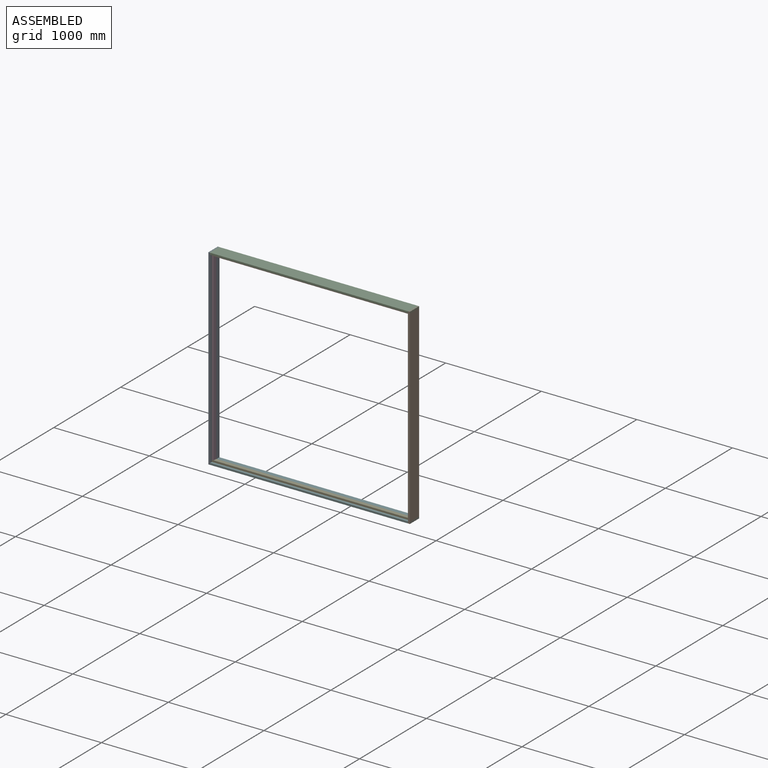
[diagram: assembled view]
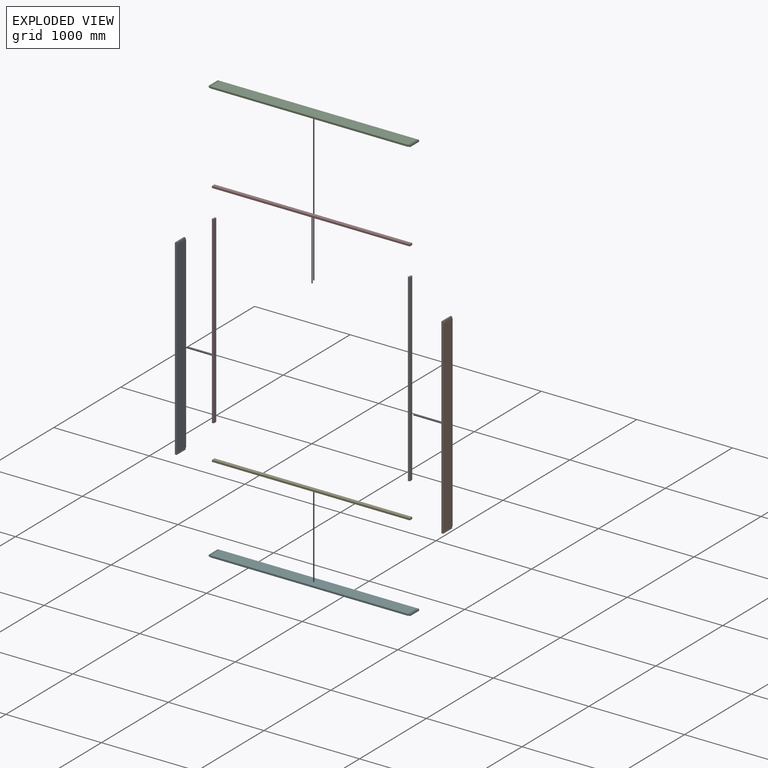
[diagram: exploded view]
GUIDED TOUR — MATED ASSEMBLY (Onshape document 37dc3142e768c124ee8894ab, AutoMate assembly 37dc3142e768c124ee8894ab_7675b949278638d42082e3d6_f96c5b0db1acd5f47ab8d275_default)

This assembly has 8 components, labeled P0..P7 below (a component is one placed occurrence of a part; the same part can appear more than once), held together by 21 mates. A mate is a constraint between two components; its type names the relative motion it leaves free:
  PLANAR — leaves sliding in the plane through the listed point (normal = the listed direction) and rotation about that normal free.
Axis/direction vectors are unit vectors and 'through' points are millimeter coordinates, both in the assembly's world frame.

MATES
  1. PLANAR "Planar 11": P7 <-> P2, direction (0.000, -1.000, 0.000) through (-302.90, -1438.75, -539.74) mm
  2. PLANAR "Planar 3": P2 <-> P1, direction (0.000, 0.000, 1.000) through (-302.90, -1394.27, -511.16) mm
  3. PLANAR "Planar 13": P3 <-> P0, direction (-1.000, 0.000, 0.000) through (-1337.95, -1419.70, -1514.46) mm
  4. PLANAR "Planar 16": P0 <-> P4, direction (1.000, 0.000, 0.000) through (-1337.95, -1394.33, -1514.46) mm
  5. PLANAR "Planar 17": P3 <-> P7, direction (0.000, 0.000, 1.000) through (-1328.42, -1419.70, -549.26) mm
  6. PLANAR "Planar 21": P6 <-> P7, direction (0.000, -1.000, 0.000) through (722.63, -1438.75, -1514.46) mm
  7. PLANAR "Planar 18": P7 <-> P3, direction (0.000, -1.000, 0.000) through (-302.90, -1438.75, -539.74) mm
  8. PLANAR "Planar 4": P5 <-> P1, direction (0.000, -1.000, 0.000) through (-302.90, -1464.15, -2508.24) mm
  9. PLANAR "Planar 10": P4 <-> P5, direction (0.000, 0.000, -1.000) through (-302.90, -1419.70, -2498.71) mm
  10. PLANAR "Planar 2": P1 <-> P2, direction (1.000, 0.000, 0.000) through (751.20, -1394.33, -1514.46) mm
  11. PLANAR "Planar 12": P7 <-> P2, direction (0.000, 0.000, 1.000) through (-302.90, -1419.70, -530.21) mm
  12. PLANAR "Planar 7": P0 <-> P2, direction (0.000, -1.000, 0.000) through (-1347.47, -1464.15, -1514.46) mm
  13. PLANAR "Planar 20": P6 <-> P7, direction (0.000, 0.000, 1.000) through (722.63, -1419.70, -549.26) mm
  14. PLANAR "Planar 14": P0 <-> P7, direction (1.000, 0.000, 0.000) through (-1337.95, -1394.33, -1514.46) mm
  15. PLANAR "Planar 1": P1 <-> P2, direction (0.000, -1.000, 0.000) through (741.68, -1464.15, -1514.46) mm
  16. PLANAR "Planar 15": P4 <-> P5, direction (0.000, -1.000, 0.000) through (-302.90, -1438.75, -2489.19) mm
  17. PLANAR "Planar 9": P0 <-> P2, direction (-1.000, 0.000, 0.000) through (-1357.00, -1394.33, -1514.46) mm
  18. PLANAR "Planar 5": P1 <-> P5, direction (0.000, 0.000, -1.000) through (751.20, -1460.97, -2517.76) mm
  19. PLANAR "Planar 6": P5 <-> P1, direction (1.000, 0.000, 0.000) through (751.20, -1454.62, -2498.71) mm
  20. PLANAR "Planar 19": P6 <-> P1, direction (1.000, 0.000, 0.000) through (732.15, -1419.70, -1514.46) mm
  21. PLANAR "Planar 8": P0 <-> P2, direction (0.000, 0.000, 1.000) through (-1347.47, -1460.97, -511.16) mm

ASSEMBLY ORDER
  1. P4 — the base component [order verified]
  2. P3 [order verified]
  3. P0 [order verified]
  4. P5 [order verified]
  5. P6 [order verified]
  6. P1 [order verified]
  7. P7 [order verified]
  8. P2 [order verified]
(P1, P2, P5 verified with a relaxed clearance tolerance: the source model stores slight part interference there.)
Order-tag legend:
  [order verified] — this step's position reverses a verified removal order: the component was checked to insert without passing through the ones already placed.

Of the 8 components, 4 carry the full construction recipe — the FeatureScript program that regenerates the part's solid from scratch; the rest are supplied as boundary geometry only.
Each toured component is shown spotlighted twice — in the assembled view, then in the exploded view, where a leader line traces a displaced component back to its assembled socket (saturated green if recipe-attached, orange if geometry-only; every other component desaturated gray) — followed by its recipe or geometry summary and the mates that hold it.
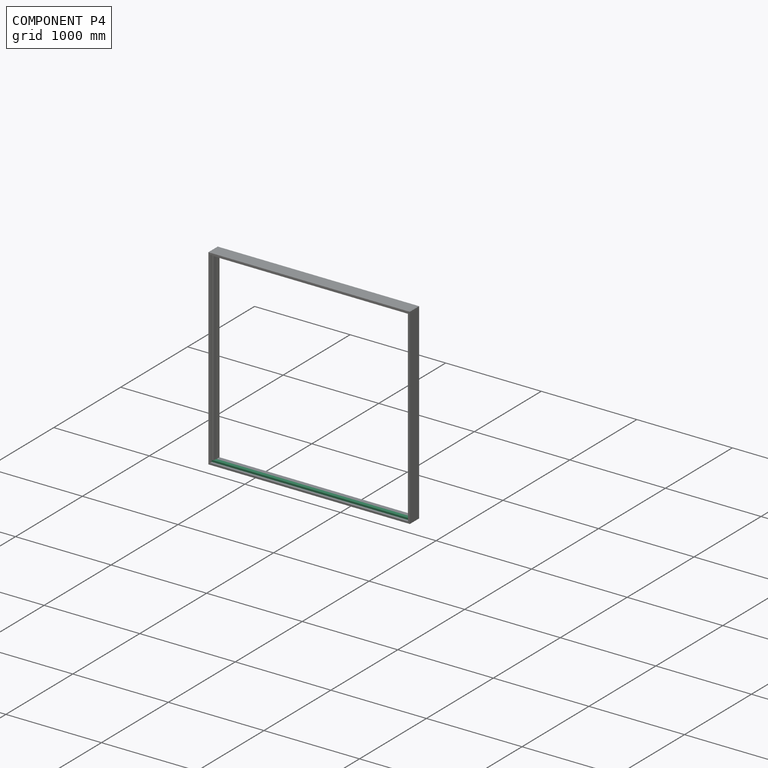
[diagram: component P4 — assembled]
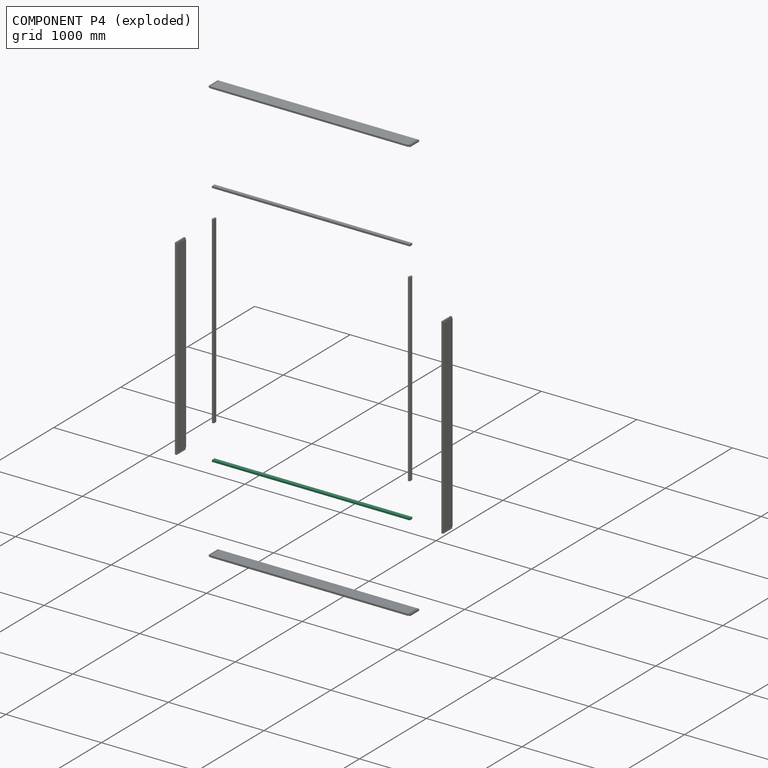
[diagram: component P4 — exploded]
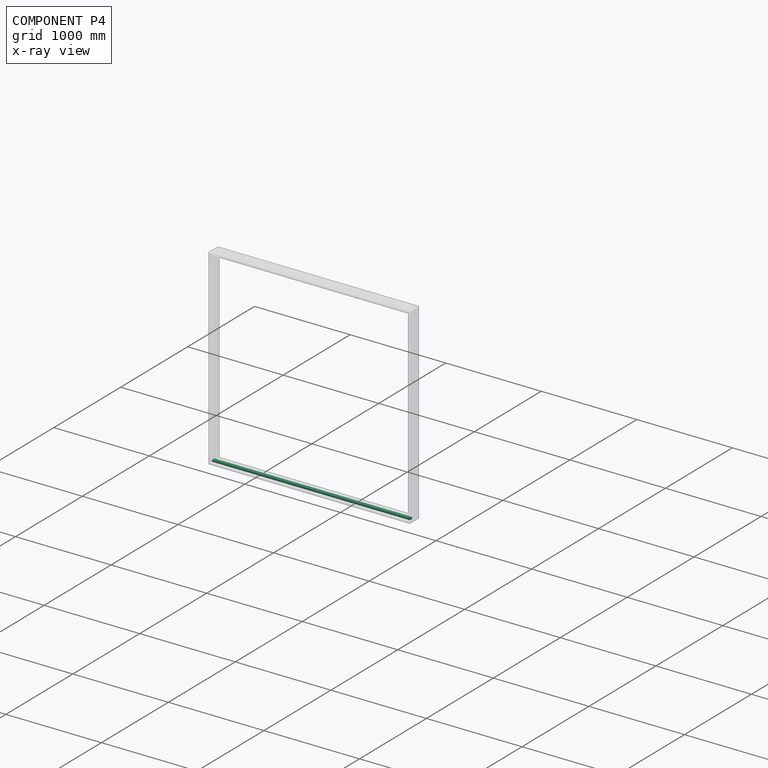
[diagram: component P4 — x-ray view]
COMPONENT P4 — recipe-attached (CADFS 00887722, mesh-verified: the recipe's output STEP matches this component's geometry to below the mesh-comparison resolution (tessellation chordal tolerance ~3.11 mm)).
Held by: PLANAR mate "Planar 16" to P0; PLANAR mate "Planar 10" to P5; PLANAR mate "Planar 15" to P5.
Construction recipe (FeatureScript — the CAD program that rebuilds this solid; sketch coordinates are in the units given by the * unit suffixes, e.g. mm):

FeatureScript 1511;
import(path : "onshape/std/geometry.fs", version : "1511.0");
import(path : "onshape/std/common.fs", version : "1511.0");
const mm = millimeter;
const VERTEX = EntityType.VERTEX;
const EDGE = EntityType.EDGE;
const FACE = EntityType.FACE;
const BODY = EntityType.BODY;
function v(x, y){return vector(x, y);}
function OD(order){return orderDisambiguation(order);}
function OSD(set){return originalSetDisambiguation(set);}
function TD(topology){return topologyDisambiguation(topology);}
function TDD(query){return trueDependencyDisambiguation(query);}
function sQuery(a, b, c) {return sketchEntityQuery(a, b, c);}

annotation { "Feature Type Name" : "Feature", "Feature Type Description" : "" }
export const myFeature = defineFeature(function(context is Context, id is Id, definition is map)
    precondition{}
    {
        {
            var Q0;
            Q0=qCreatedBy(makeId("Front.planeOp"),FACE);
            var sketch = newSketch(context, id + "F0", { "sketchPlane" : qUnion([Q0])});
            skLineSegment(sketch, "E0.bottom", {"start": v(-9.52, 19.05) * mm, "end": v(9.53, 19.05) * mm});
            skLineSegment(sketch, "E0.top", {"start": v(-9.53, -19.05) * mm, "end": v(9.52, -19.05) * mm});
            skLineSegment(sketch, "E0.left", {"start": v(-9.52, 19.05) * mm, "end": v(-9.53, -19.05) * mm});
            skLineSegment(sketch, "E0.right", {"start": v(9.53, 19.05) * mm, "end": v(9.52, -19.05) * mm});
            skPoint(sketch, "E0.middle", {"position": v(0, 0) * mm});
            skSolve(sketch);
        }
        {
            var Q0;
            Q0 = qSketchRegion(id + "F0", true);
            extrude(context, id + "F1", {"entities" : qUnion([Q0]), "endBound" : BoundingType.SYMMETRIC, "depth" : 2070.1 * mm, "offsetDistance" : 25.4 * mm});
        }
    });
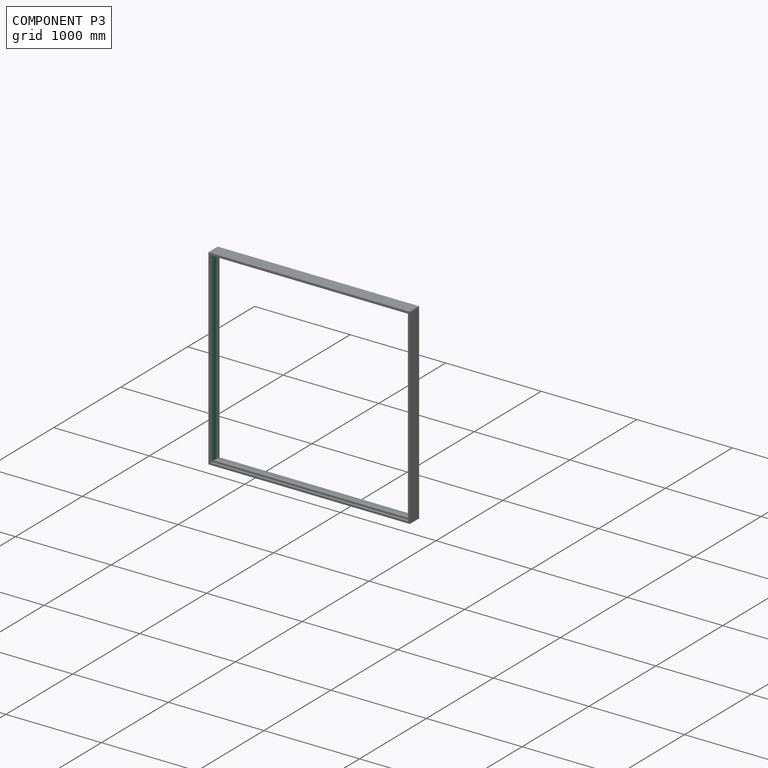
[diagram: component P3 — assembled]
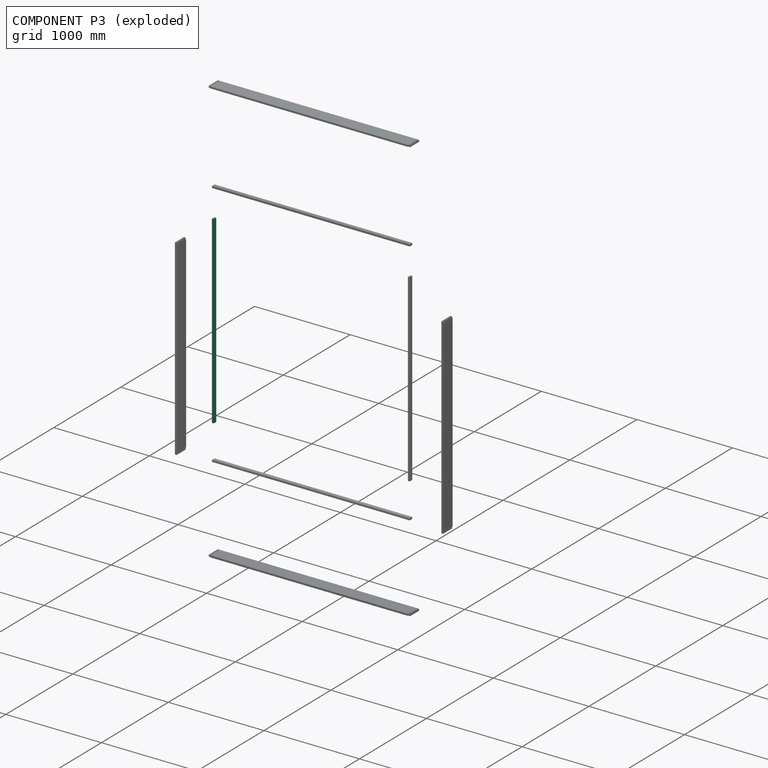
[diagram: component P3 — exploded]
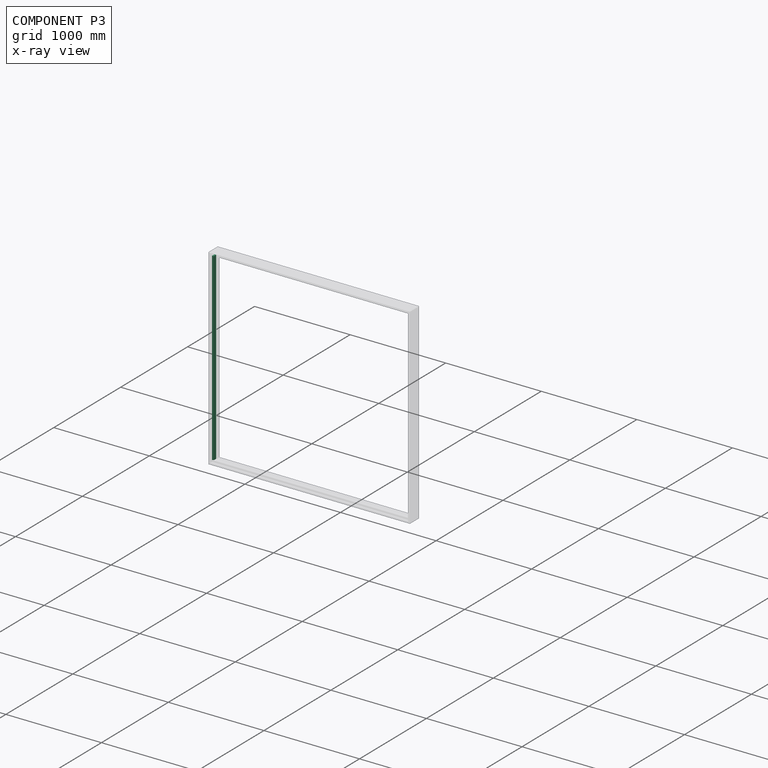
[diagram: component P3 — x-ray view]
COMPONENT P3 — recipe-attached (CADFS 00887723, mesh-verified: the recipe's output STEP matches this component's geometry to below the mesh-comparison resolution (tessellation chordal tolerance ~2.9 mm)).
Held by: PLANAR mate "Planar 13" to P0; PLANAR mate "Planar 17" to P7; PLANAR mate "Planar 18" to P7.
Construction recipe (FeatureScript — the CAD program that rebuilds this solid; sketch coordinates are in the units given by the * unit suffixes, e.g. mm):

FeatureScript 1511;
import(path : "onshape/std/geometry.fs", version : "1511.0");
import(path : "onshape/std/common.fs", version : "1511.0");
const mm = millimeter;
const VERTEX = EntityType.VERTEX;
const EDGE = EntityType.EDGE;
const FACE = EntityType.FACE;
const BODY = EntityType.BODY;
function v(x, y){return vector(x, y);}
function OD(order){return orderDisambiguation(order);}
function OSD(set){return originalSetDisambiguation(set);}
function TD(topology){return topologyDisambiguation(topology);}
function TDD(query){return trueDependencyDisambiguation(query);}
function sQuery(a, b, c) {return sketchEntityQuery(a, b, c);}

annotation { "Feature Type Name" : "Feature", "Feature Type Description" : "" }
export const myFeature = defineFeature(function(context is Context, id is Id, definition is map)
    precondition{}
    {
        {
            var Q0;
            Q0=qCreatedBy(makeId("Front.planeOp"),FACE);
            var sketch = newSketch(context, id + "F0", { "sketchPlane" : qUnion([Q0])});
            skLineSegment(sketch, "E0.bottom", {"start": v(-9.52, 19.05) * mm, "end": v(9.53, 19.05) * mm});
            skLineSegment(sketch, "E0.top", {"start": v(-9.53, -19.05) * mm, "end": v(9.52, -19.05) * mm});
            skLineSegment(sketch, "E0.left", {"start": v(-9.52, 19.05) * mm, "end": v(-9.53, -19.05) * mm});
            skLineSegment(sketch, "E0.right", {"start": v(9.53, 19.05) * mm, "end": v(9.52, -19.05) * mm});
            skPoint(sketch, "E0.middle", {"position": v(0, 0) * mm});
            skSolve(sketch);
        }
        {
            var Q0;
            Q0=qSketchRegion(id+"F0",true);
            extrude(context, id + "F1", {"entities" : qUnion([Q0]), "endBound" : BoundingType.SYMMETRIC, "depth" : 1930.4 * mm, "offsetDistance" : 25.4 * mm});
        }
    });
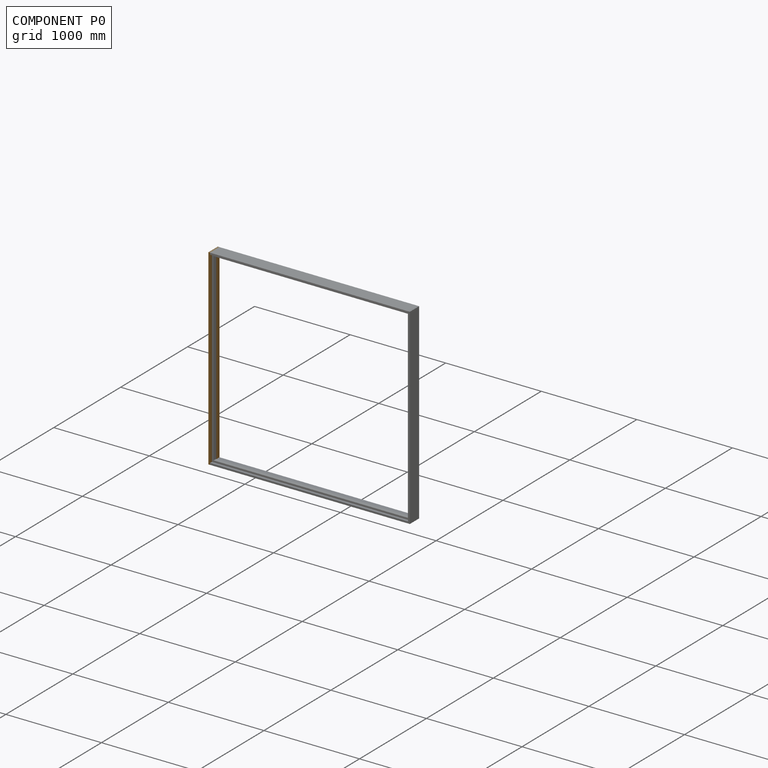
[diagram: component P0 — assembled]
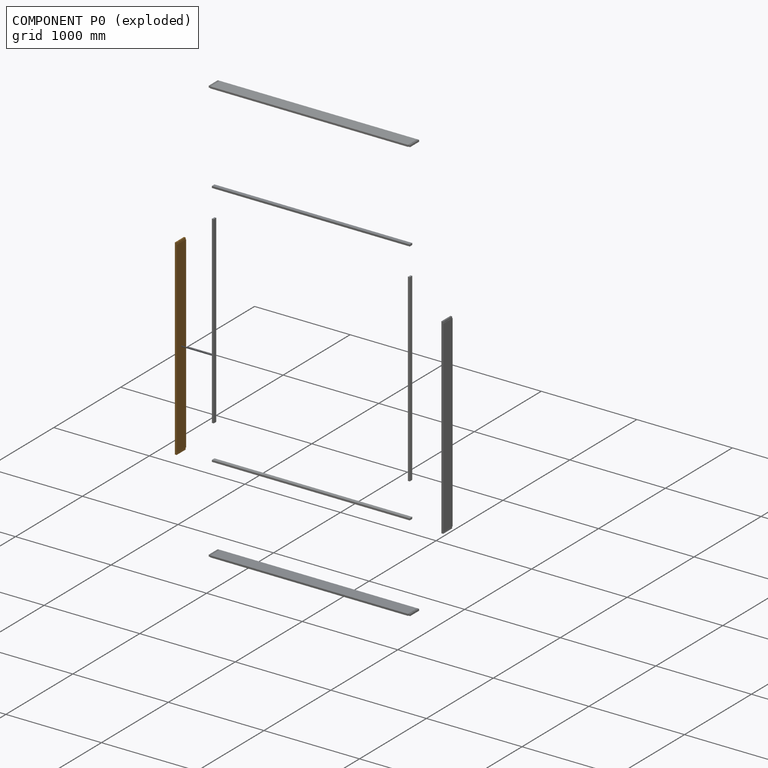
[diagram: component P0 — exploded]
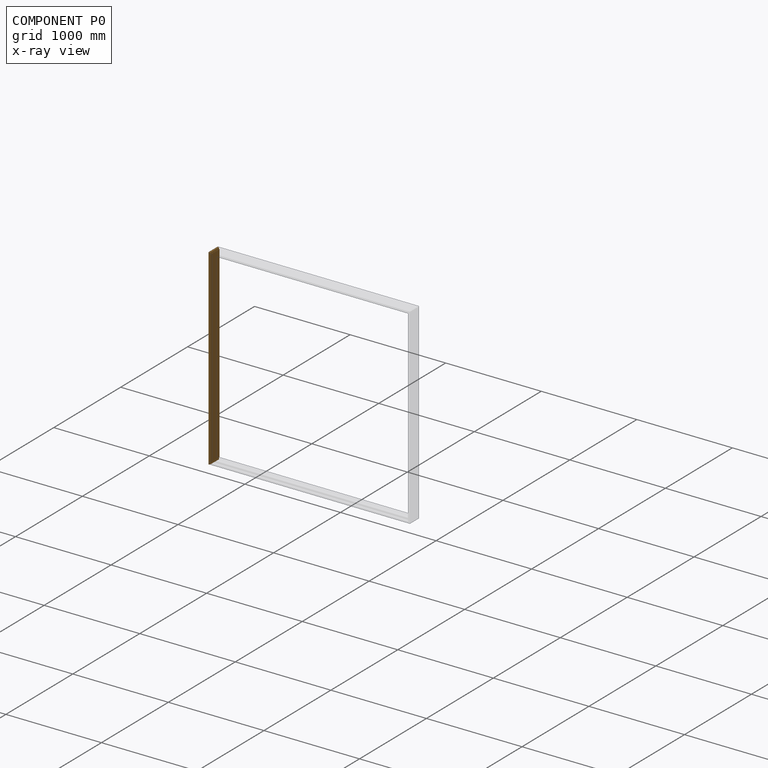
[diagram: component P0 — x-ray view]
COMPONENT P0 — geometry summary (no construction recipe available for this part):
  bounding box: 2006.6 x 139.7 x 19.1 mm
  B-rep topology: 1 solid, 90 faces, 528 edges
  volume: 5289437 mm^3 (99% of its bounding box)
  symmetry: 2-fold rotationally symmetric about the x axis; 2-fold rotationally symmetric about the y axis; 2-fold rotationally symmetric about the z axis; mirror-symmetric across its x mid-plane, y mid-plane, z mid-plane
Held by: PLANAR mate "Planar 13" to P3; PLANAR mate "Planar 16" to P4; PLANAR mate "Planar 7" to P2; PLANAR mate "Planar 14" to P7; PLANAR mate "Planar 9" to P2; PLANAR mate "Planar 8" to P2.
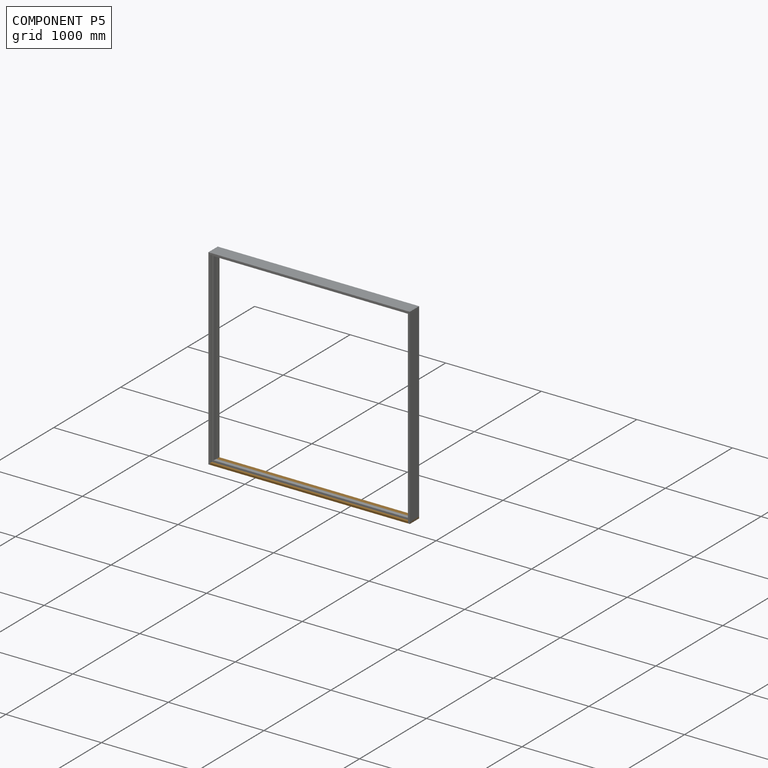
[diagram: component P5 — assembled]
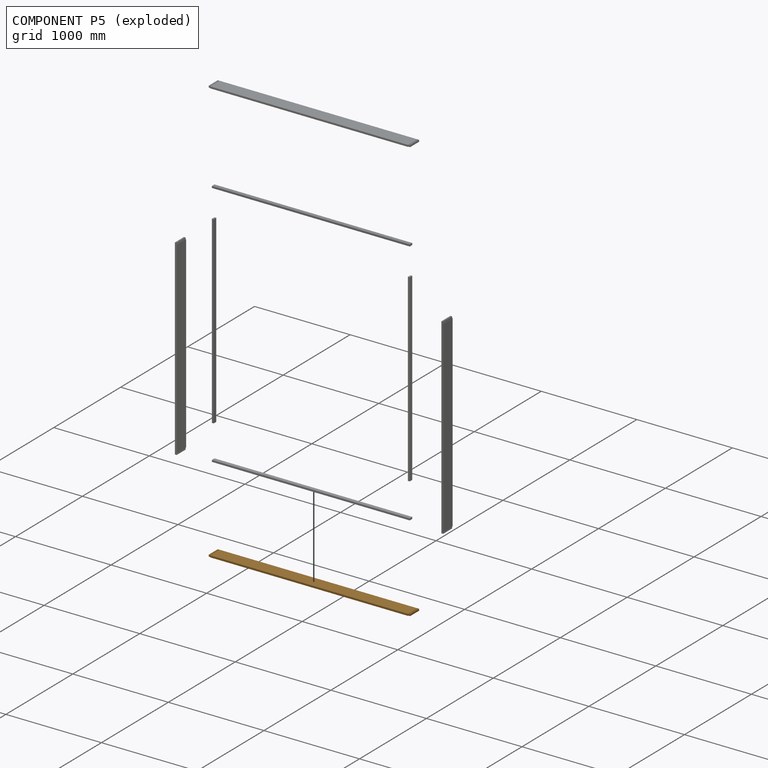
[diagram: component P5 — exploded]
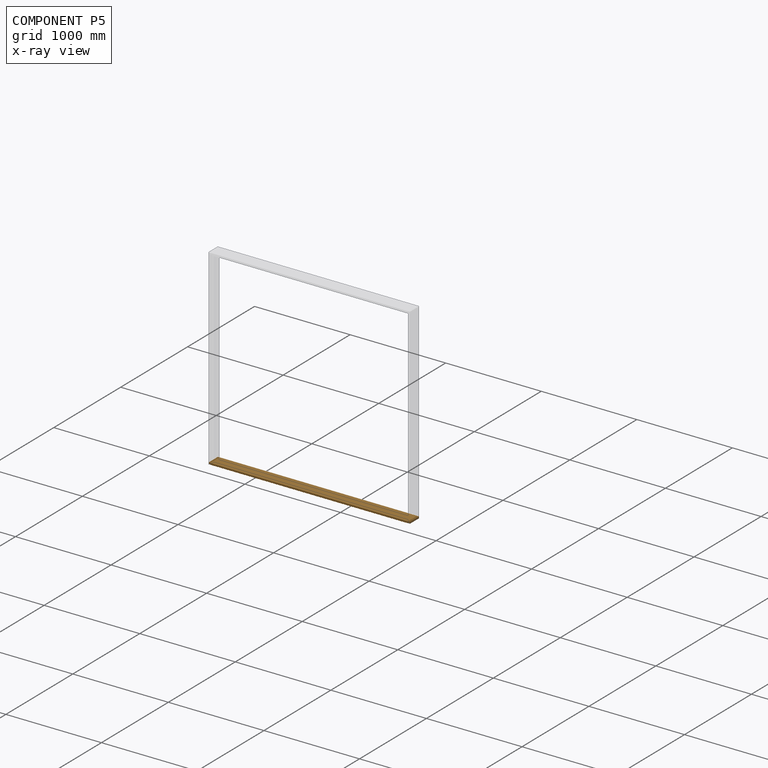
[diagram: component P5 — x-ray view]
COMPONENT P5 — geometry summary (no construction recipe available for this part):
  bounding box: 2108.2 x 139.7 x 19.1 mm
  B-rep topology: 1 solid, 90 faces, 528 edges
  volume: 5559824 mm^3 (99% of its bounding box)
  symmetry: 2-fold rotationally symmetric about the x axis; 2-fold rotationally symmetric about the y axis; 2-fold rotationally symmetric about the z axis; mirror-symmetric across its x mid-plane, y mid-plane, z mid-plane
Held by: PLANAR mate "Planar 4" to P1; PLANAR mate "Planar 10" to P4; PLANAR mate "Planar 15" to P4; PLANAR mate "Planar 5" to P1; PLANAR mate "Planar 6" to P1.
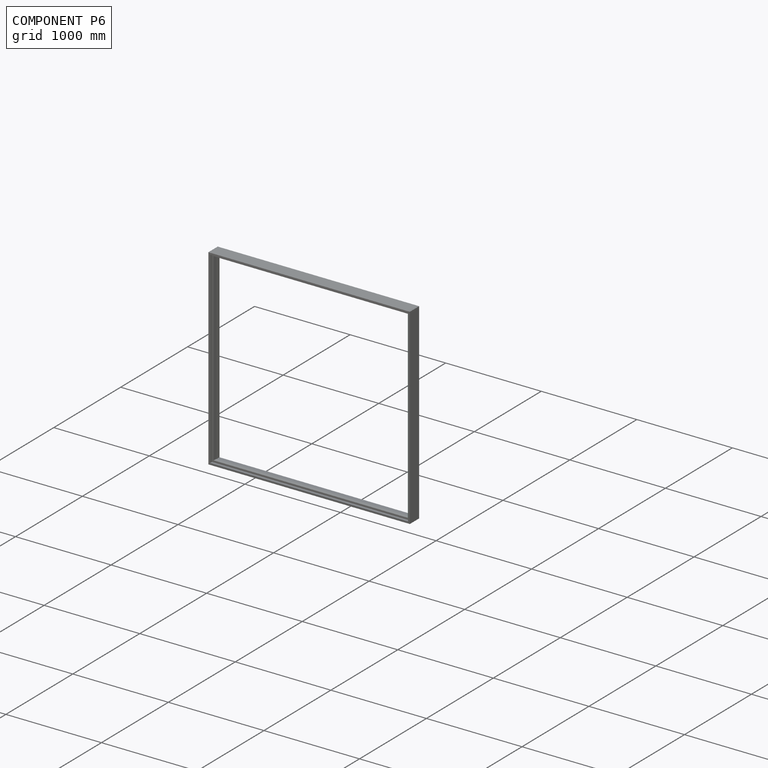
[diagram: component P6 — assembled]
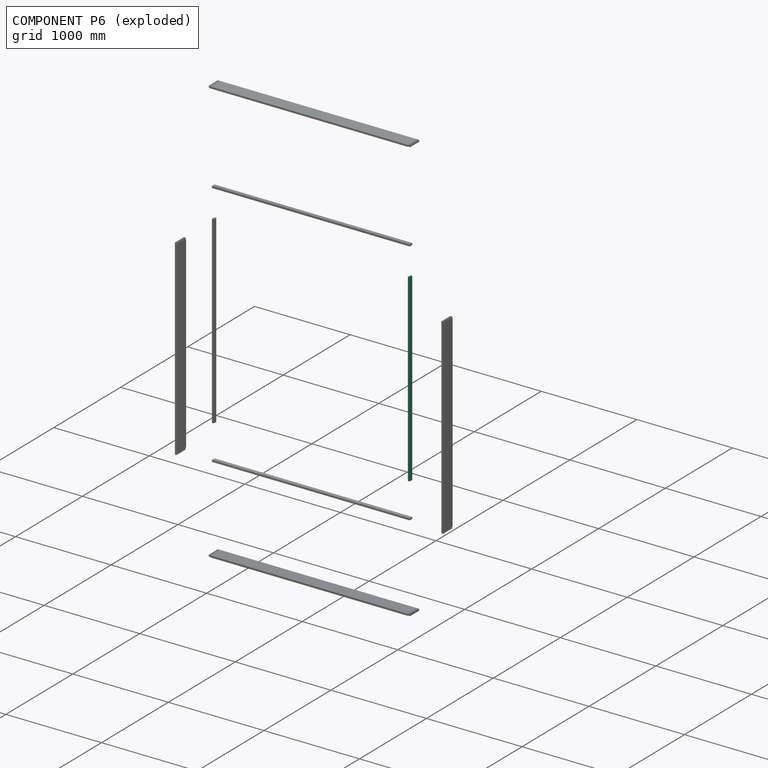
[diagram: component P6 — exploded]
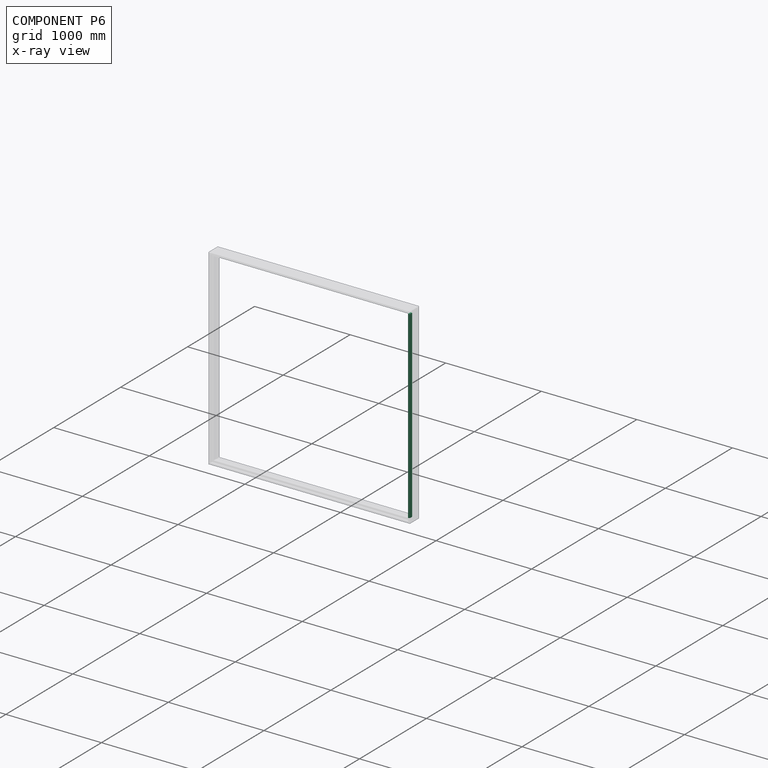
[diagram: component P6 — x-ray view]
COMPONENT P6 — same part as P3 (CADFS 00887723); its construction recipe is shown at P3.
Held by: PLANAR mate "Planar 21" to P7; PLANAR mate "Planar 20" to P7; PLANAR mate "Planar 19" to P1.
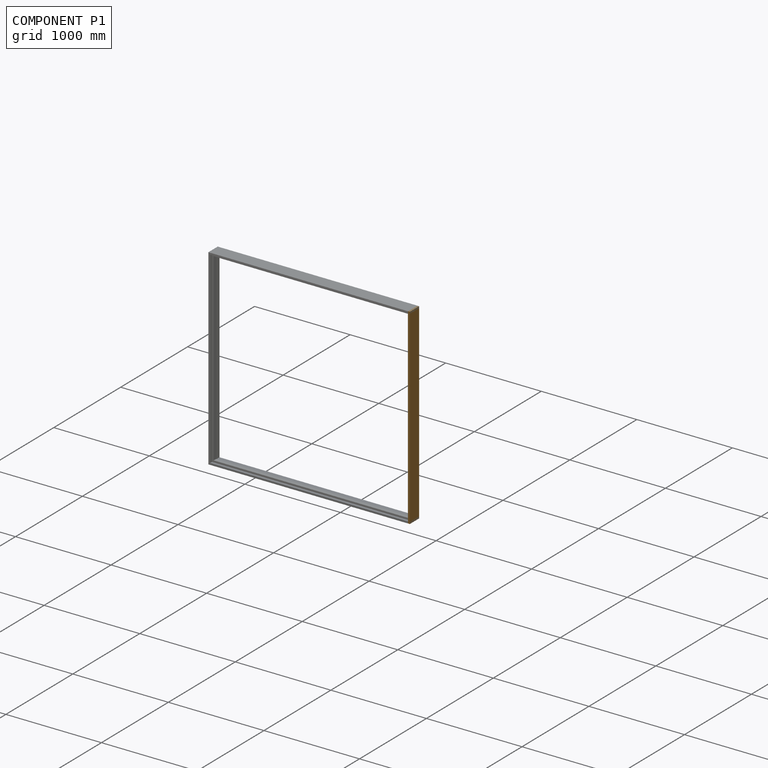
[diagram: component P1 — assembled]
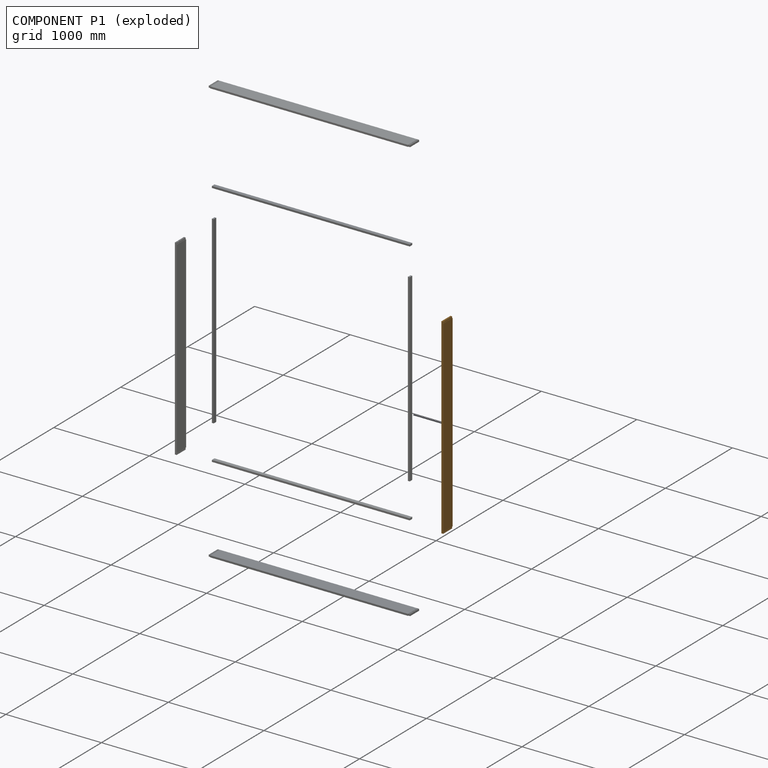
[diagram: component P1 — exploded]
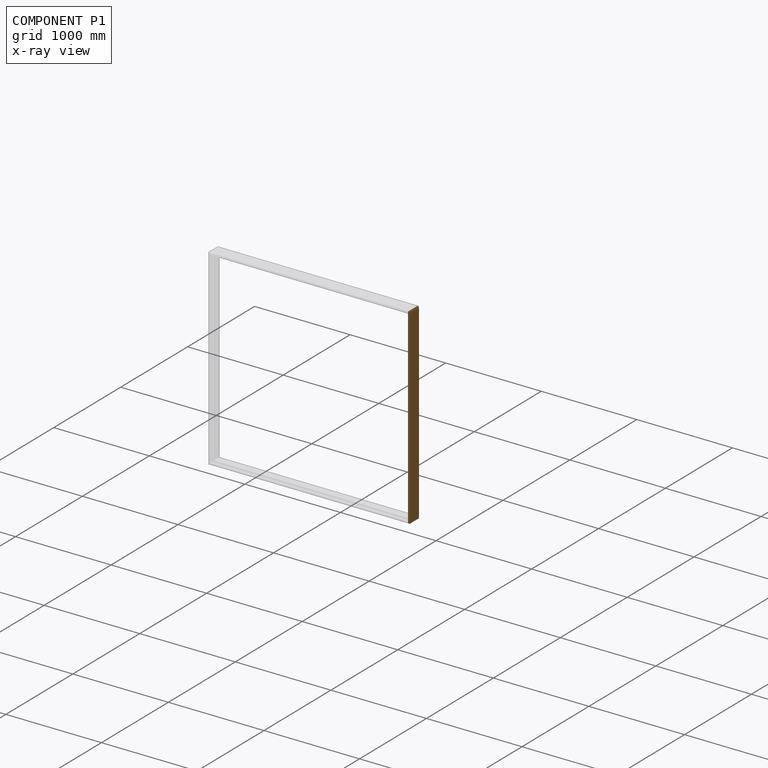
[diagram: component P1 — x-ray view]
COMPONENT P1 — geometry summary (no construction recipe available for this part):
  bounding box: 2006.6 x 139.7 x 19.1 mm
  B-rep topology: 1 solid, 90 faces, 528 edges
  volume: 5289437 mm^3 (99% of its bounding box)
  symmetry: 2-fold rotationally symmetric about the x axis; 2-fold rotationally symmetric about the y axis; 2-fold rotationally symmetric about the z axis; mirror-symmetric across its x mid-plane, y mid-plane, z mid-plane
Held by: PLANAR mate "Planar 3" to P2; PLANAR mate "Planar 4" to P5; PLANAR mate "Planar 2" to P2; PLANAR mate "Planar 1" to P2; PLANAR mate "Planar 5" to P5; PLANAR mate "Planar 6" to P5; PLANAR mate "Planar 19" to P6.
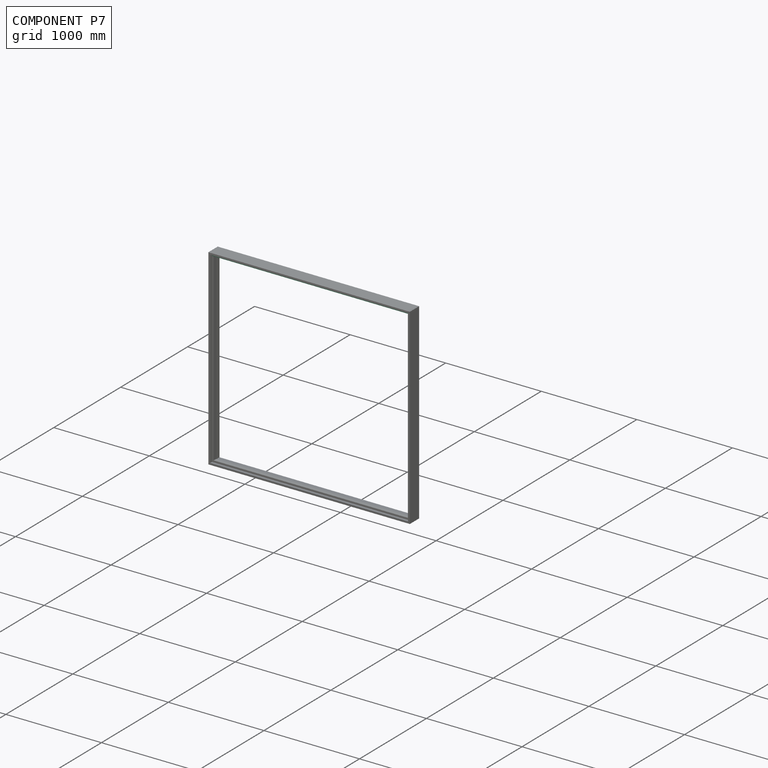
[diagram: component P7 — assembled]
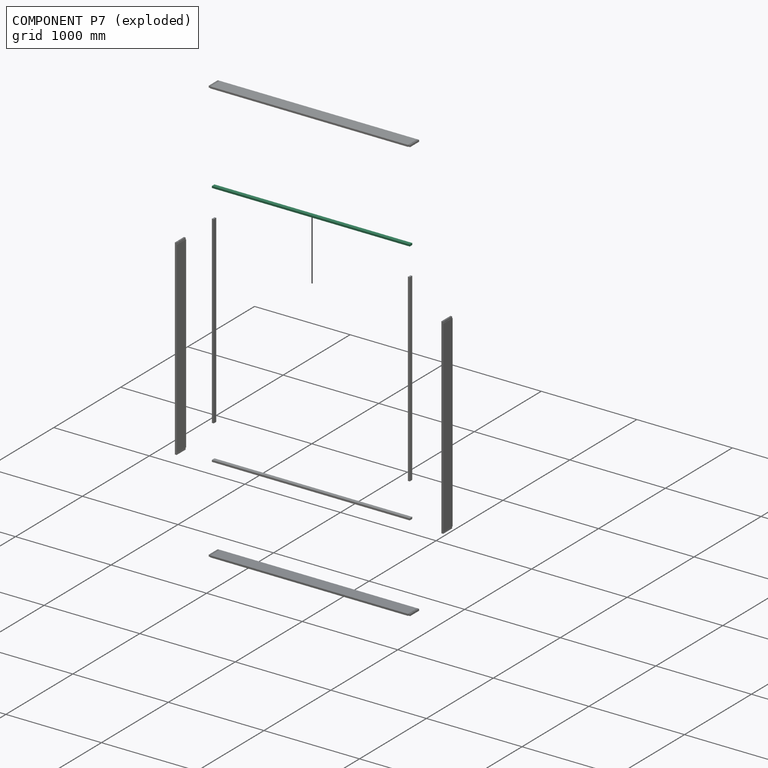
[diagram: component P7 — exploded]
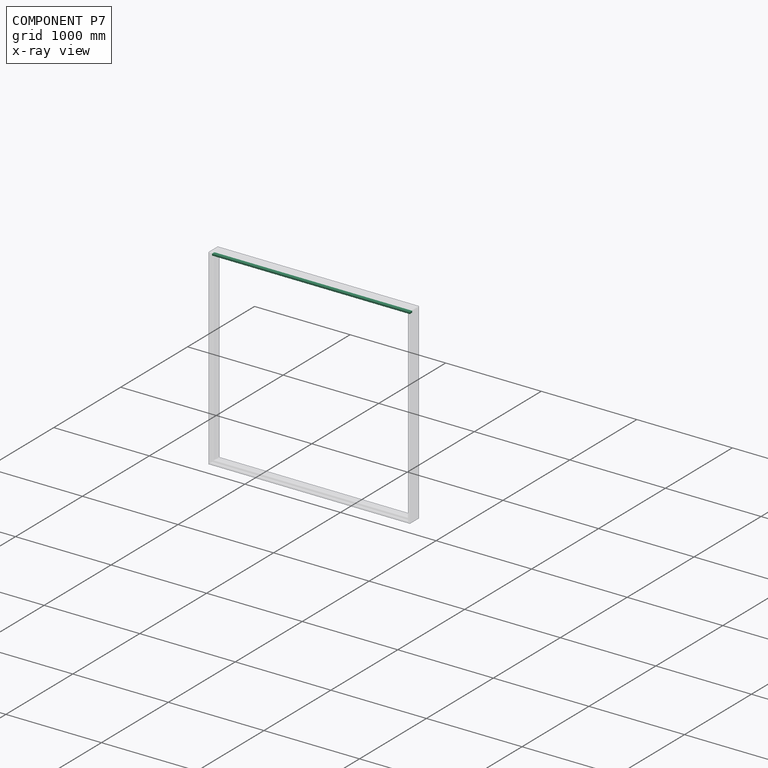
[diagram: component P7 — x-ray view]
COMPONENT P7 — same part as P4 (CADFS 00887722); its construction recipe is shown at P4.
Held by: PLANAR mate "Planar 11" to P2; PLANAR mate "Planar 17" to P3; PLANAR mate "Planar 21" to P6; PLANAR mate "Planar 18" to P3; PLANAR mate "Planar 12" to P2; PLANAR mate "Planar 20" to P6; PLANAR mate "Planar 14" to P0.
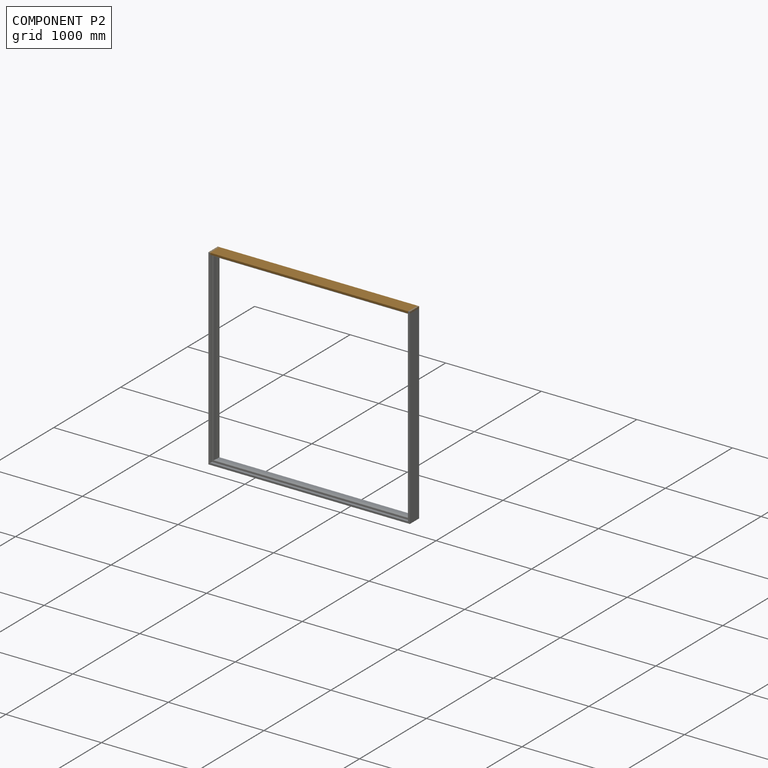
[diagram: component P2 — assembled]
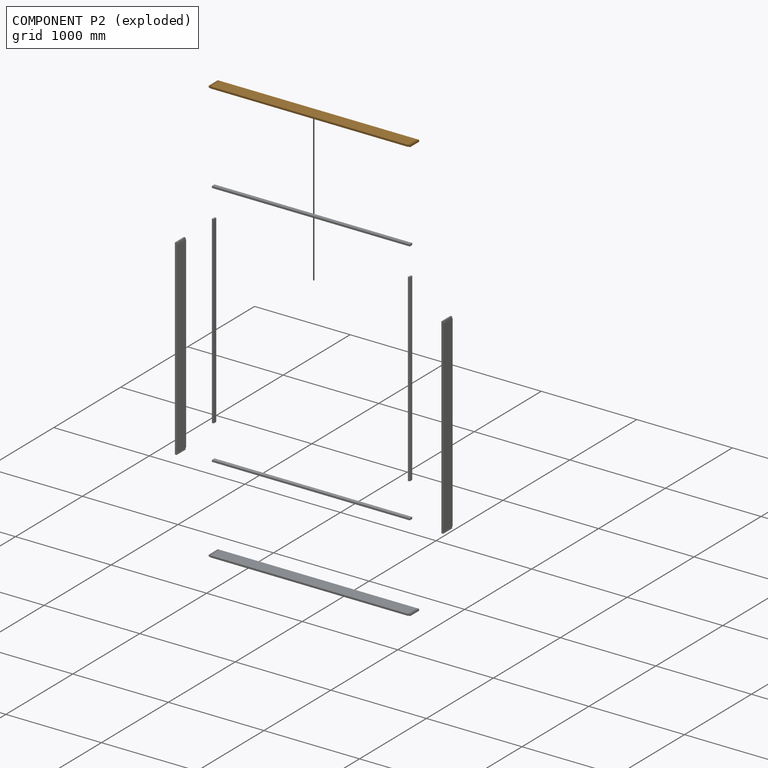
[diagram: component P2 — exploded]
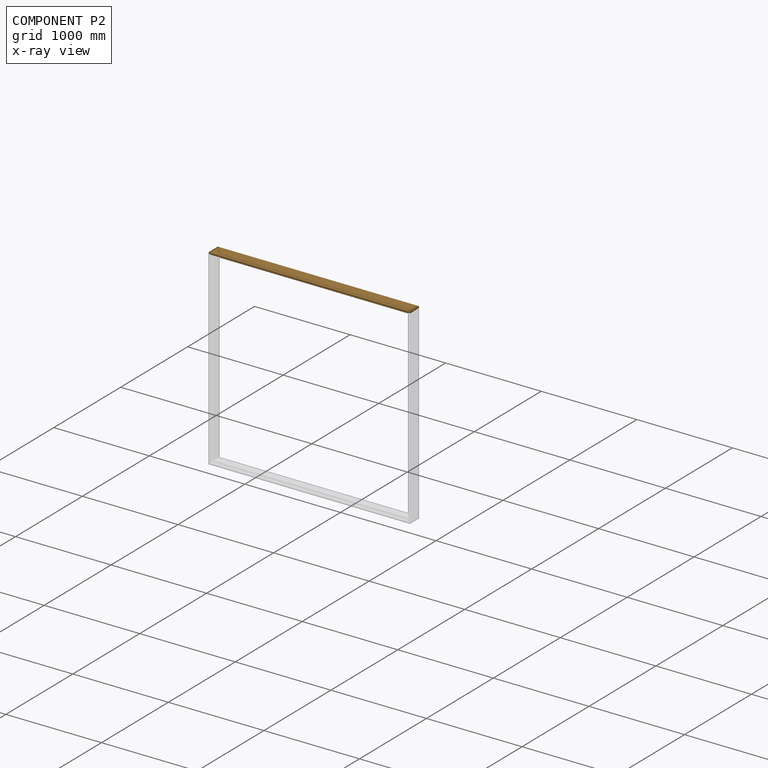
[diagram: component P2 — x-ray view]
COMPONENT P2 — geometry summary (no construction recipe available for this part):
  bounding box: 2108.2 x 139.7 x 19.1 mm
  B-rep topology: 1 solid, 90 faces, 528 edges
  volume: 5559824 mm^3 (99% of its bounding box)
  symmetry: 2-fold rotationally symmetric about the x axis; 2-fold rotationally symmetric about the y axis; 2-fold rotationally symmetric about the z axis; mirror-symmetric across its x mid-plane, y mid-plane, z mid-plane
Held by: PLANAR mate "Planar 11" to P7; PLANAR mate "Planar 3" to P1; PLANAR mate "Planar 2" to P1; PLANAR mate "Planar 12" to P7; PLANAR mate "Planar 7" to P0; PLANAR mate "Planar 1" to P1; PLANAR mate "Planar 9" to P0; PLANAR mate "Planar 8" to P0.
PROVENANCE & LICENSES
Assembly (occurrences, transforms, mates, per-part STEP geometry): AutoMate dataset, Zenodo record 7776208, CC0.
Construction recipes: CADFS (HuggingFace VladPyatov/CADFS, CC-BY-4.0, layered over the ABC dataset), FeatureScript reconstruction programs keyed by ABC model id.
Join: ABC meta listings map ABC model id -> Onshape documentId; within a shared document, parts are matched by geometric signature (bounding-box dims + volume at 0.1% relative tolerance, exact B-rep face/solid counts).
Verification: 4 of this assembly's 8 components carry a recipe attachment, and every attachment is mesh-verified: the CADFS STEP and the AutoMate member STEP were compared as meshes in their shared local frame (symmetric sampled-point-to-mesh distance); worst across the 4 attachments: below the mesh-comparison resolution (tessellation chordal tolerance ~3.11 mm) on a 2071 mm part.
Renders: orthographic iso camera (az 35 / el 25); the floor grid conveys scale (grid pitch printed in each image; no ruler). In the exploded view each component is displaced by its stored offset vector: the offsets alone carry the explosion direction (mate normal/axis signs are not orientation cues and do not encode it), and separation distances are assigned per mate-chain, not proportionally to assembly-order depth.
